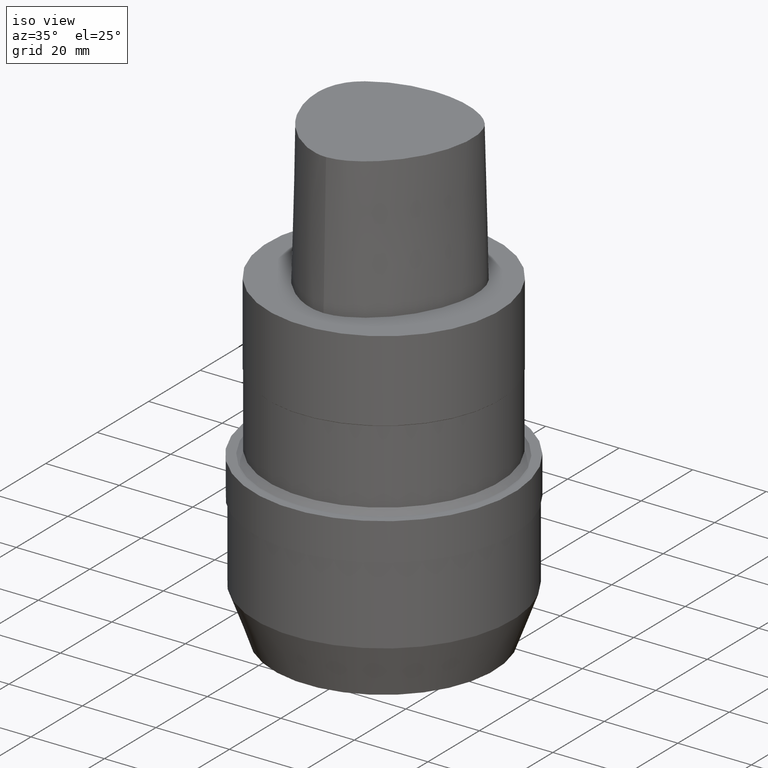
[diagram: clean part render]
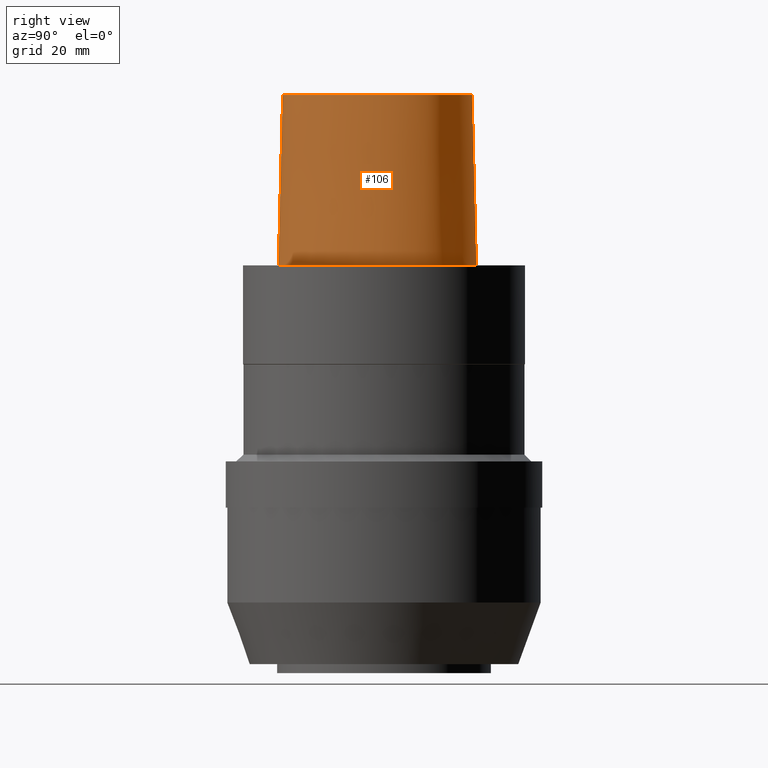
[diagram: tour spotlight — one face highlighted and labeled with its STEP entity id]
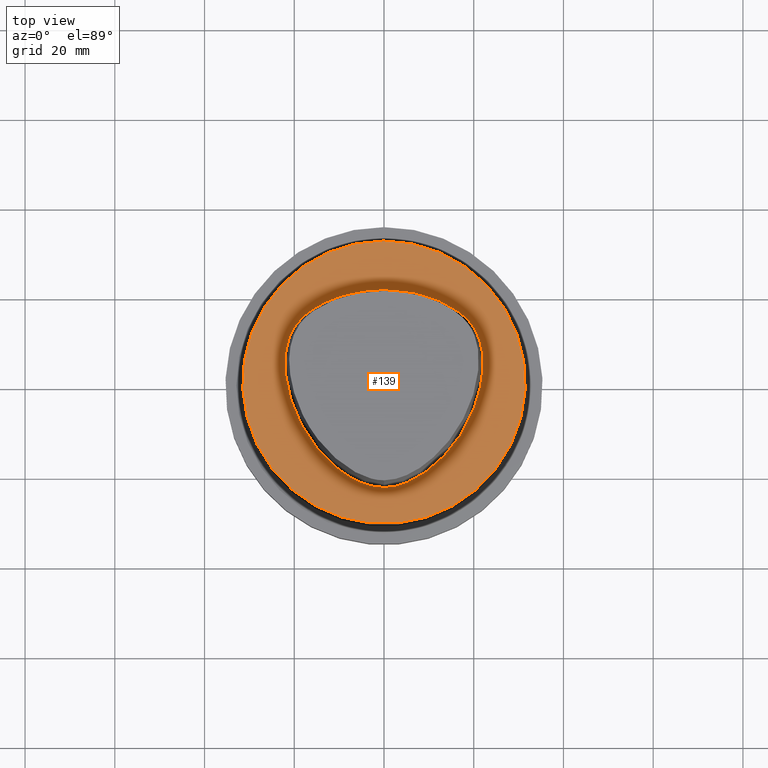
[diagram: tour spotlight — one face highlighted and labeled with its STEP entity id]
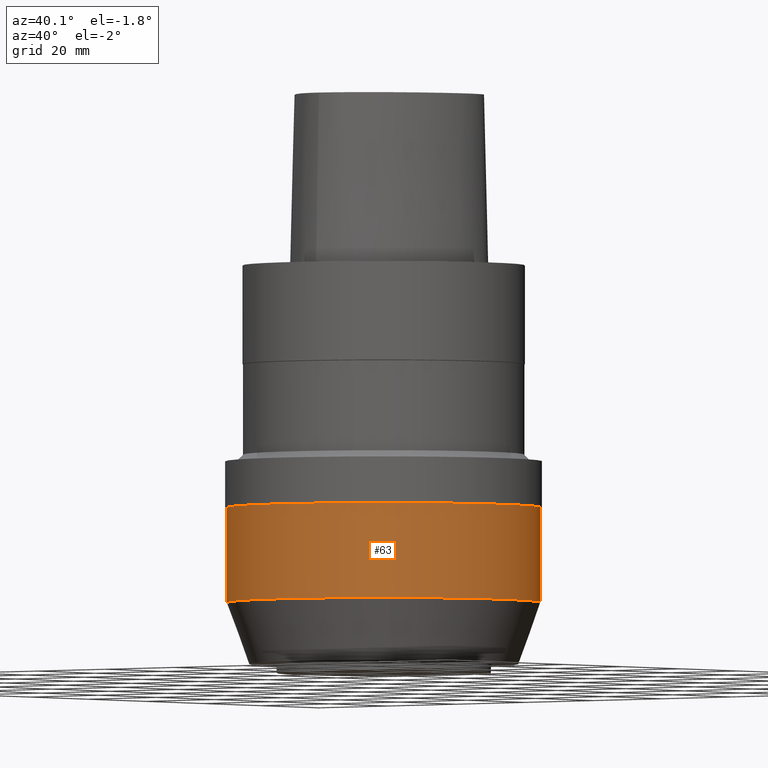
[diagram: tour spotlight — one face highlighted and labeled with its STEP entity id]
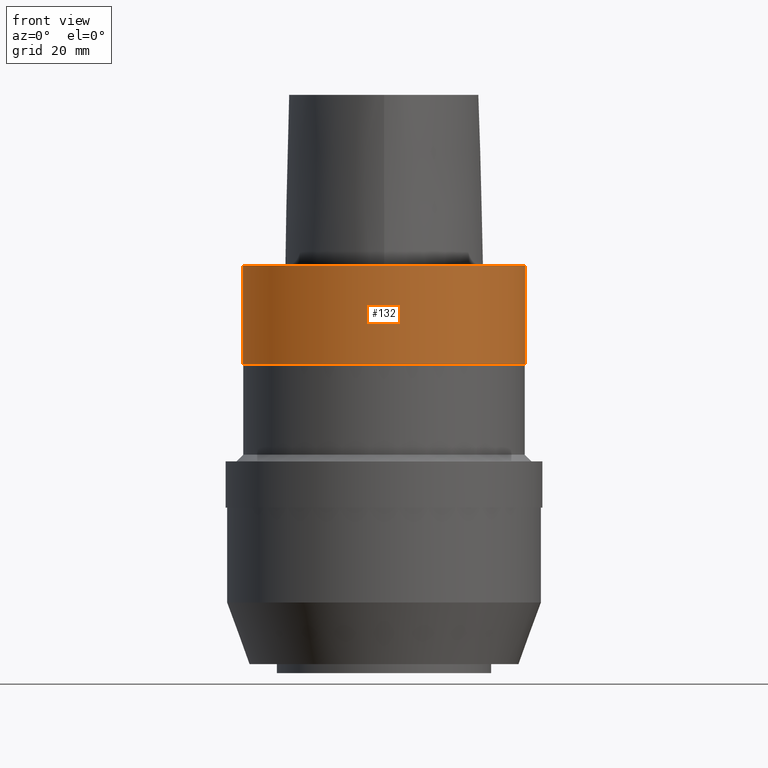
[diagram: tour spotlight — one face highlighted and labeled with its STEP entity id]
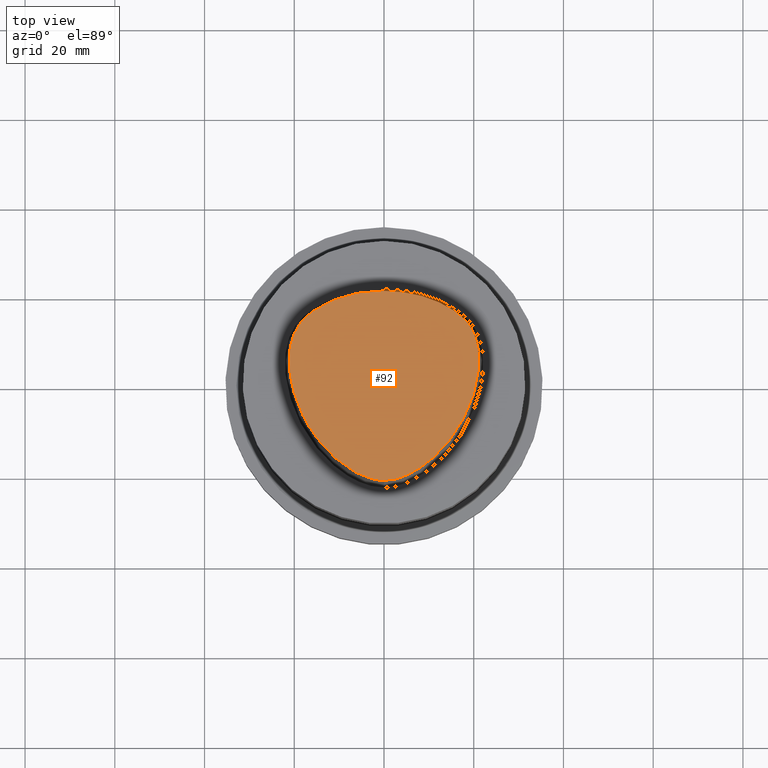
[diagram: tour spotlight — one face highlighted and labeled with its STEP entity id]
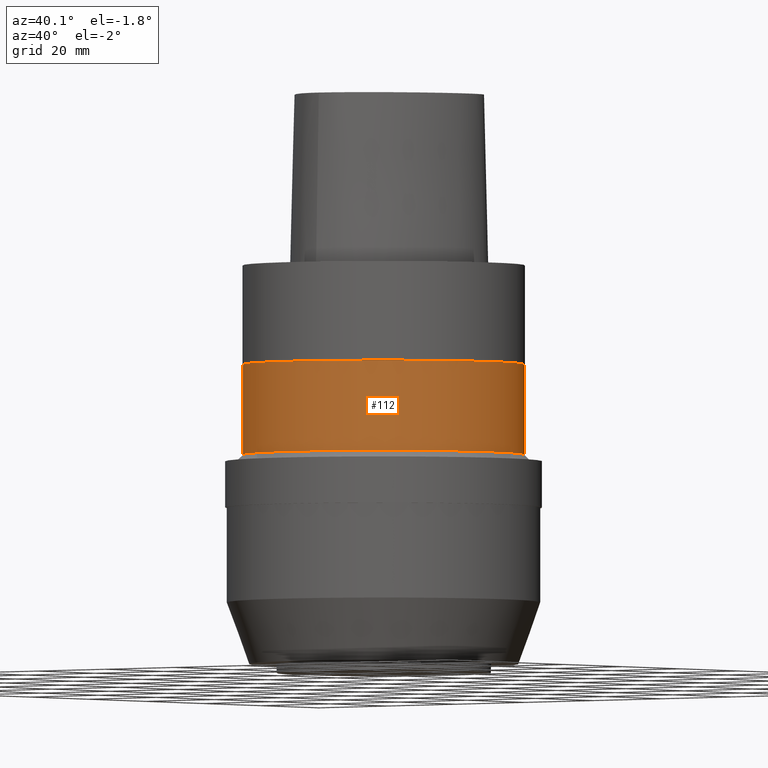
[diagram: tour spotlight — one face highlighted and labeled with its STEP entity id]
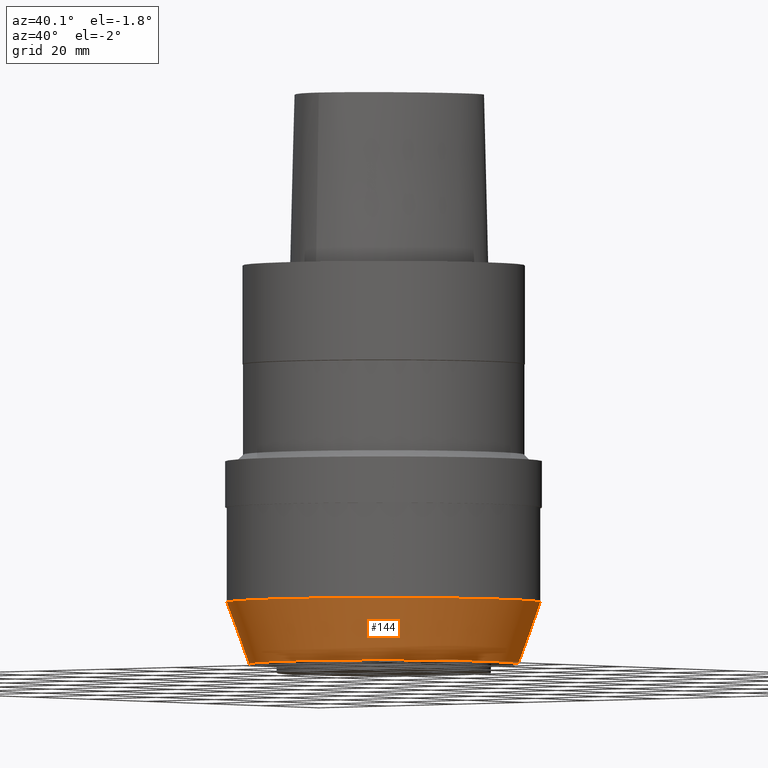
[diagram: tour spotlight — one face highlighted and labeled with its STEP entity id]
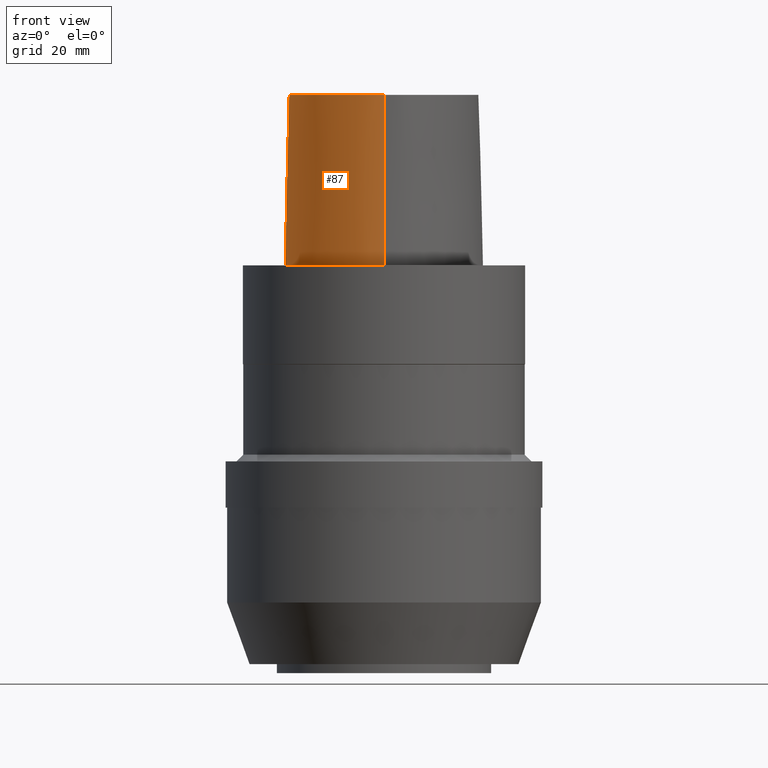
[diagram: tour spotlight — one face highlighted and labeled with its STEP entity id]
A machine part: a face-by-face anatomy tour. The part has 17 B-rep faces; the first image is the clean iso view, then the 8 largest visible faces are spotlighted one at a time (largest first), each with its STEP entity span.

Face 1 — right view, entity #106. In plain terms, the highlighted face is a freeform B-spline surface patch.
Definition (entity closure, byte-faithful):
#72=EDGE_CURVE('Unnamed[1]',#188,#189,#190,.T.);
#89=EDGE_CURVE('Unnamed[1]',#214,#206,#215,.T.);
#106=ADVANCED_FACE('Unnamed[1]',(#237),#238,.T.);
#117=EDGE_CURVE('Unnamed[1]',#189,#206,#254,.T.);
#136=EDGE_CURVE('Unnamed[1]',#214,#188,#283,.T.);
#188=VERTEX_POINT('',#339);
#189=VERTEX_POINT('',#340);
#190=LINE('',#341,#342);
#206=VERTEX_POINT('',#362);
#214=VERTEX_POINT('',#460);
#215=LINE('',#461,#462);
#237=FACE_OUTER_BOUND('',#507,.T.);
#238=B_SPLINE_SURFACE_WITH_KNOTS('',3,3,((#508,#509,#510,#511),(#512,#513,#514,#515),(#516,#517,#518,#519),(#520,#521,#522,#523),(#524,#525,#526,#527),(#528,#529,#530,#531),(#532,#533,#534,#535),(#536,#537,#538,#539),(#540,#541,#542,#543),(#544,#545,#546,#547),(#548,#549,#550,#551),(#552,#553,#554,#555),(#556,#557,#558,#559),(#560,#561,#562,#563),(#564,#565,#566,#567),(#568,#569,#570,#571),(#572,#573,#574,#575)),.UNSPECIFIED.,.F.,.F.,.F.,(4,1,1,1,1,1,1,1,1,1,1,1,1,1,4),(4,4),(-13.2302678617486,-12.816821991069,-12.4033761203893,-11.9899302497097,-11.57648437903,-11.1630385083504,-10.9563155730106,-10.7495926376707,-10.3361467669911,-9.92270089631145,-9.09580915495216,-8.26891741359287,-7.44202567223358,-7.02857980155394,-6.6151339308743),(-3.8,0.0),.UNSPECIFIED.);
#254=B_SPLINE_CURVE_WITH_KNOTS('',3,(#595,#596,#597,#598,#599,#600,#601,#602,#603,#604,#605,#606,#607,#608,#609,#610,#611),.UNSPECIFIED.,.F.,.F.,(4,1,1,1,1,1,1,1,1,1,1,1,1,1,4),(-13.2302678617486,-12.816821991069,-12.4033761203893,-11.9899302497097,-11.57648437903,-11.1630385083504,-10.9563155730106,-10.7495926376707,-10.3361467669911,-9.92270089631145,-9.09580915495216,-8.26891741359287,-7.44202567223358,-7.02857980155394,-6.6151339308743),.UNSPECIFIED.);
#283=B_SPLINE_CURVE_WITH_KNOTS('',3,(#648,#649,#650,#651,#652,#653,#654,#655,#656,#657,#658,#659,#660,#661,#662,#663),.UNSPECIFIED.,.F.,.F.,(4,1,1,1,1,1,1,1,1,1,1,1,1,4),(6.61513393087476,6.99917207152274,7.48193246986995,7.96289324787093,8.45540287038584,9.10291653679981,9.67129810936083,10.1618749681153,10.6358867802489,11.1080734988593,11.6043706019633,12.09451993853,12.6985979284494,13.2302678617486),.UNSPECIFIED.);
#339=CARTESIAN_POINT('',(-0.001218547003662,19.7276821925089,38.0));
#340=CARTESIAN_POINT('',(0.044682985379347,20.6765087343109,1.61778115328528E-031));
#341=CARTESIAN_POINT('',(-0.001218547003662,19.7276821925089,38.0));
#342=VECTOR('',#717,38.0118715503078);
#362=CARTESIAN_POINT('',(0.04359356758149,-23.4691235068931,7.78075697532443E-032));
#460=CARTESIAN_POINT('',(0.038736923393866,-22.5191997536361,38.0));
#461=CARTESIAN_POINT('',(0.038736923393866,-22.5191997536361,38.0));
#462=VECTOR('',#736,38.0118715498723);
#507=EDGE_LOOP('',(#757,#758,#759,#760));
#508=CARTESIAN_POINT('',(-0.001218367817519,19.7276822012873,38.0));
#509=CARTESIAN_POINT('',(0.014082083248157,20.0439577123075,25.3333333333066));
#510=CARTESIAN_POINT('',(0.029382534313671,20.3602332232908,12.6666666666934));
#511=CARTESIAN_POINT('',(0.044682985379347,20.6765087343109,1.61778115328528E-031));
#512=CARTESIAN_POINT('',(1.37788651195108,19.6609652834875,38.0));
#513=CARTESIAN_POINT('',(1.3931885827258,19.9772407169847,25.3333333333066));
#514=CARTESIAN_POINT('',(1.40849065356095,20.2935162254648,12.6666666666934));
#515=CARTESIAN_POINT('',(1.42379272427753,20.6097915814392,8.62816615085482E-032));
#516=CARTESIAN_POINT('',(4.135446440878,19.5347778787784,38.0));
#517=CARTESIAN_POINT('',(4.16466278851883,19.8511031866125,25.3333333333066));
#518=CARTESIAN_POINT('',(4.1938791526746,20.1674284644204,12.6666666666934));
#519=CARTESIAN_POINT('',(4.2230955003445,20.4837538303966,1.4791141972894E-031));
#520=CARTESIAN_POINT('',(8.213607363795,18.7706026638736,38.0));
#521=CARTESIAN_POINT('',(8.29980745008421,19.0767495109635,25.3333333333066));
#522=CARTESIAN_POINT('',(8.38600751285747,19.3828964329996,12.6666666666934));
#523=CARTESIAN_POINT('',(8.47220762821777,19.6890432607088,9.86076131526265E-032));
#524=CARTESIAN_POINT('',(12.1316338645671,17.3698624840857,38.0));
#525=CARTESIAN_POINT('',(12.2591308270381,17.6610739397708,25.3333333333066));
#526=CARTESIAN_POINT('',(12.3866278083543,17.9522853923553,12.6666666666934));
#527=CARTESIAN_POINT('',(12.5141247708253,18.2434968480404,0.0));
#528=CARTESIAN_POINT('',(15.7706546153679,15.3789501349612,38.0));
#529=CARTESIAN_POINT('',(15.9483905900895,15.6437731794811,25.3333333333066));
#530=CARTESIAN_POINT('',(16.1261265513272,15.9085961736944,12.6666666666934));
#531=CARTESIAN_POINT('',(16.3038624872874,16.1734192182143,1.97215226305253E-031));
#532=CARTESIAN_POINT('',(18.4265894256284,13.0570022172893,38.0));
#533=CARTESIAN_POINT('',(18.6659567517146,13.2725589420689,25.3333333333066));
#534=CARTESIAN_POINT('',(18.9053240921419,13.4881156488541,12.6666666666934));
#535=CARTESIAN_POINT('',(19.1446913988473,13.7036723639434,-1.97215226305253E-031));
#536=CARTESIAN_POINT('',(19.8679958653038,10.6923771981998,38.0));
#537=CARTESIAN_POINT('',(20.1559937048299,10.8287388264873,25.3333333333066));
#538=CARTESIAN_POINT('',(20.4439915656177,10.965100461641,12.6666666666934));
#539=CARTESIAN_POINT('',(20.7319894342149,11.1014620996188,0.0));
#540=CARTESIAN_POINT('',(20.8470867582337,8.07149548576131,38.0));
#541=CARTESIAN_POINT('',(21.1591164072431,8.14132775555392,25.3333333333066));
#542=CARTESIAN_POINT('',(21.4711459821861,8.21116003697855,12.6666666666934));
#543=CARTESIAN_POINT('',(21.7831756505763,8.28099229708081,-1.97215226305253E-031));
#544=CARTESIAN_POINT('',(21.2693244256982,4.61157245650171,38.0));
#545=CARTESIAN_POINT('',(21.5881576801997,4.6105997689982,25.3333333333066));
#546=CARTESIAN_POINT('',(21.9069908544037,4.60962709346857,12.6666666666934));
#547=CARTESIAN_POINT('',(22.2258240701438,4.60865440596506,0.0));
#548=CARTESIAN_POINT('',(20.8071610855575,-0.912828649855193,38.0));
#549=CARTESIAN_POINT('',(21.119311671178,-0.979640884839481,25.3333333333066));
#550=CARTESIAN_POINT('',(21.4314624224461,-1.04645306732201,12.6666666666934));
#551=CARTESIAN_POINT('',(21.7436130080666,-1.11326526354485,0.0));
#552=CARTESIAN_POINT('',(18.6841935581315,-7.54428794252837,38.0));
#553=CARTESIAN_POINT('',(18.9734452551861,-7.6809665891091,25.3333333333066));
#554=CARTESIAN_POINT('',(19.2626970689956,-7.81764505382656,12.6666666666934));
#555=CARTESIAN_POINT('',(19.5519487660502,-7.95432366164584,0.0));
#556=CARTESIAN_POINT('',(14.2175552814,-14.5971504342323,38.0));
#557=CARTESIAN_POINT('',(14.4641757465198,-14.8010930946929,25.3333333333066));
#558=CARTESIAN_POINT('',(14.710796247264,-15.0050359737917,12.6666666666934));
#559=CARTESIAN_POINT('',(14.9574167123838,-15.2089785567293,0.0));
#560=CARTESIAN_POINT('',(9.0844808732933,-19.3179298129689,38.0));
#561=CARTESIAN_POINT('',(9.27912152349017,-19.572866915557,25.3333333333066));
#562=CARTESIAN_POINT('',(9.47376218971294,-19.827804295621,12.6666666666934));
#563=CARTESIAN_POINT('',(9.66840283021945,-20.0827414369705,-9.86076131526265E-032));
#564=CARTESIAN_POINT('',(4.17112919194182,-21.8987568152736,38.0));
#565=CARTESIAN_POINT('',(4.28618163483998,-22.1973837173649,25.3333333333066));
#566=CARTESIAN_POINT('',(4.40123406239433,-22.4960105163661,12.6666666666934));
#567=CARTESIAN_POINT('',(4.51628650521788,-22.7946374572188,-9.86076131526265E-032));
#568=CARTESIAN_POINT('',(1.41533654381097,-22.5120888467812,38.0));
#569=CARTESIAN_POINT('',(1.46311520162011,-22.8284916374445,25.3333333333066));
#570=CARTESIAN_POINT('',(1.51089385942236,-23.144894486341,12.6666666666934));
#571=CARTESIAN_POINT('',(1.55867251738073,-23.4612972770043,-1.23259516440783E-032));
#572=CARTESIAN_POINT('',(0.038736923393866,-22.5191997536361,38.0));
#573=CARTESIAN_POINT('',(0.04035580478973,-22.8358410047159,25.3333333333066));
#574=CARTESIAN_POINT('',(0.041974686185626,-23.1524822558133,12.6666666666934));
#575=CARTESIAN_POINT('',(0.04359356758149,-23.4691235068931,7.78075697532443E-032));
#595=CARTESIAN_POINT('',(0.044682985379347,20.6765087343109,1.61778115328528E-031));
#596=CARTESIAN_POINT('',(1.42379272427753,20.6097915814392,8.62816615085482E-032));
#597=CARTESIAN_POINT('',(4.2230955003445,20.4837538303966,1.4791141972894E-031));
#598=CARTESIAN_POINT('',(8.47220762821777,19.6890432607088,9.86076131526265E-032));
#599=CARTESIAN_POINT('',(12.5141247708253,18.2434968480404,0.0));
#600=CARTESIAN_POINT('',(16.3038624872874,16.1734192182143,1.97215226305253E-031));
#601=CARTESIAN_POINT('',(19.1446913988473,13.7036723639434,-1.97215226305253E-031));
#602=CARTESIAN_POINT('',(20.7319894342149,11.1014620996188,0.0));
#603=CARTESIAN_POINT('',(21.7831756505763,8.28099229708081,-1.97215226305253E-031));
#604=CARTESIAN_POINT('',(22.2258240701438,4.60865440596506,0.0));
#605=CARTESIAN_POINT('',(21.7436130080666,-1.11326526354485,0.0));
#606=CARTESIAN_POINT('',(19.5519487660502,-7.95432366164584,0.0));
#607=CARTESIAN_POINT('',(14.9574167123838,-15.2089785567293,0.0));
#608=CARTESIAN_POINT('',(9.66840283021945,-20.0827414369705,-9.86076131526265E-032));
#609=CARTESIAN_POINT('',(4.51628650521788,-22.7946374572188,-9.86076131526265E-032));
#610=CARTESIAN_POINT('',(1.55867251738073,-23.4612972770043,-1.23259516440783E-032));
#611=CARTESIAN_POINT('',(0.04359356758149,-23.4691235068931,7.78075697532443E-032));
#648=CARTESIAN_POINT('',(0.038736923394311,-22.519199753636,38.0));
#649=CARTESIAN_POINT('',(1.31742058183662,-22.512662269405,38.0));
#650=CARTESIAN_POINT('',(4.2093773447498,-21.9116226439989,38.0));
#651=CARTESIAN_POINT('',(8.20895504542113,-19.7798683845067,38.0));
#652=CARTESIAN_POINT('',(11.9784633234593,-16.681663904162,38.0));
#653=CARTESIAN_POINT('',(15.5308821579362,-12.5807487594113,38.0));
#654=CARTESIAN_POINT('',(18.4566248438667,-7.64932246015528,38.0));
#655=CARTESIAN_POINT('',(20.4036090752029,-2.27012499825289,38.0));
#656=CARTESIAN_POINT('',(21.2357187429189,2.79891401173156,38.0));
#657=CARTESIAN_POINT('',(21.0811206267748,7.62543090736657,38.0));
#658=CARTESIAN_POINT('',(19.3383577336563,12.2772250726194,38.0));
#659=CARTESIAN_POINT('',(15.5796322014404,15.5799672120682,38.0));
#660=CARTESIAN_POINT('',(10.8392956074438,17.9834601687347,38.0));
#661=CARTESIAN_POINT('',(5.56068045850571,19.4586143858472,38.0));
#662=CARTESIAN_POINT('',(1.77223893711014,19.6418877095654,38.0));
#663=CARTESIAN_POINT('',(-0.001218367817519,19.7276822012873,38.0));
#717=DIRECTION('',(0.001207557810519,0.024961321374199,-0.999687688350411));
#736=DIRECTION('',(0.000127766510556,-0.024990186342461,-0.999687688361864));
#757=ORIENTED_EDGE('',*,*,#117,.F.);
#758=ORIENTED_EDGE('',*,*,#72,.F.);
#759=ORIENTED_EDGE('',*,*,#136,.F.);
#760=ORIENTED_EDGE('',*,*,#89,.T.);

Face 2 — top view, entity #139. In plain terms, the highlighted planar face has unit normal (-0, -0, 1).
Definition (entity closure, byte-faithful):
#70=EDGE_CURVE('Unnamed[1]',#185,#185,#186,.T.);
#84=EDGE_CURVE('Unnamed[1]',#206,#207,#208,.T.);
#117=EDGE_CURVE('Unnamed[1]',#189,#206,#254,.T.);
#139=ADVANCED_FACE('Unnamed[1]',(#286,#287),#288,.T.);
#152=EDGE_CURVE('Unnamed[1]',#207,#189,#307,.T.);
#185=VERTEX_POINT('',#335);
#186=CIRCLE('',#336,31.5);
#189=VERTEX_POINT('',#340);
#206=VERTEX_POINT('',#362);
#207=VERTEX_POINT('',#363);
#208=B_SPLINE_CURVE_WITH_KNOTS('',3,(#364,#365,#366,#367,#368,#369,#370,#371,#372,#373,#374,#375,#376,#377,#378,#379,#380,#381),.UNSPECIFIED.,.F.,.F.,(4,1,1,1,1,1,1,1,1,2,1,1,1,1,4),(-6.6151339308743,-6.20168806019465,-5.78824218951501,-5.37479631883537,-4.96135044815572,-4.13445870679644,-3.30756696543715,-2.89412109475751,-2.48067522407786,-2.06722935339822,-1.65378348271857,-1.24033761203893,-0.826891741359287,-0.413445870679644,0.0),.UNSPECIFIED.);
#254=B_SPLINE_CURVE_WITH_KNOTS('',3,(#595,#596,#597,#598,#599,#600,#601,#602,#603,#604,#605,#606,#607,#608,#609,#610,#611),.UNSPECIFIED.,.F.,.F.,(4,1,1,1,1,1,1,1,1,1,1,1,1,1,4),(-13.2302678617486,-12.816821991069,-12.4033761203893,-11.9899302497097,-11.57648437903,-11.1630385083504,-10.9563155730106,-10.7495926376707,-10.3361467669911,-9.92270089631145,-9.09580915495216,-8.26891741359287,-7.44202567223358,-7.02857980155394,-6.6151339308743),.UNSPECIFIED.);
#286=FACE_BOUND('',#667,.T.);
#287=FACE_OUTER_BOUND('',#668,.T.);
#288=PLANE('',#669);
#307=CIRCLE('',#693,0.949936168436318);
#335=CARTESIAN_POINT('',(-3.88267476788467E-031,31.5,3.85763741731416E-015));
#336=AXIS2_PLACEMENT_3D('',#714,#715,#716);
#340=CARTESIAN_POINT('',(0.044682985379347,20.6765087343109,1.61778115328528E-031));
#362=CARTESIAN_POINT('',(0.04359356758149,-23.4691235068931,7.78075697532443E-032));
#363=CARTESIAN_POINT('',(-0.045171994691285,20.6766009553285,1.6755590516169E-031));
#364=CARTESIAN_POINT('',(0.04359356758149,-23.4691235068931,7.78075697532443E-032));
#365=CARTESIAN_POINT('',(-1.4714994713963,-23.4767895315797,2.46519032881566E-032));
#366=CARTESIAN_POINT('',(-4.43923476371401,-22.821149804767,-4.93038065763132E-032));
#367=CARTESIAN_POINT('',(-8.35043230079961,-20.8000751253325,-9.86076131526265E-032));
#368=CARTESIAN_POINT('',(-11.744900222602,-18.1556117874078,-1.97215226305253E-031));
#369=CARTESIAN_POINT('',(-15.6989602501314,-14.0406306929147,-1.97215226305253E-031));
#370=CARTESIAN_POINT('',(-19.5352875070682,-8.00624990770787,1.97215226305253E-031));
#371=CARTESIAN_POINT('',(-21.7205626190491,-1.16081708945282,0.0));
#372=CARTESIAN_POINT('',(-22.2486616783342,4.54965558738736,0.0));
#373=CARTESIAN_POINT('',(-21.6646421256468,9.00229539124618,0.0));
#374=CARTESIAN_POINT('',(-20.3945635471922,11.7780544971003,0.0));
#375=CARTESIAN_POINT('',(-18.5925528034471,14.1980602922581,0.0));
#376=CARTESIAN_POINT('',(-16.3226584122258,16.1777748720707,0.0));
#377=CARTESIAN_POINT('',(-12.5076407874579,18.2524201541303,9.86076131526265E-032));
#378=CARTESIAN_POINT('',(-8.46776192107786,19.679114377952,9.86076131526265E-032));
#379=CARTESIAN_POINT('',(-4.23043497193604,20.487781597334,1.97215226305253E-031));
#380=CARTESIAN_POINT('',(-1.42313094248379,20.6127745766442,1.10933564796705E-031));
#381=CARTESIAN_POINT('',(-0.045171994691285,20.6766009553285,1.6755590516169E-031));
#595=CARTESIAN_POINT('',(0.044682985379347,20.6765087343109,1.61778115328528E-031));
#596=CARTESIAN_POINT('',(1.42379272427753,20.6097915814392,8.62816615085482E-032));
#597=CARTESIAN_POINT('',(4.2230955003445,20.4837538303966,1.4791141972894E-031));
#598=CARTESIAN_POINT('',(8.47220762821777,19.6890432607088,9.86076131526265E-032));
#599=CARTESIAN_POINT('',(12.5141247708253,18.2434968480404,0.0));
#600=CARTESIAN_POINT('',(16.3038624872874,16.1734192182143,1.97215226305253E-031));
#601=CARTESIAN_POINT('',(19.1446913988473,13.7036723639434,-1.97215226305253E-031));
#602=CARTESIAN_POINT('',(20.7319894342149,11.1014620996188,0.0));
#603=CARTESIAN_POINT('',(21.7831756505763,8.28099229708081,-1.97215226305253E-031));
#604=CARTESIAN_POINT('',(22.2258240701438,4.60865440596506,0.0));
#605=CARTESIAN_POINT('',(21.7436130080666,-1.11326526354485,0.0));
#606=CARTESIAN_POINT('',(19.5519487660502,-7.95432366164584,0.0));
#607=CARTESIAN_POINT('',(14.9574167123838,-15.2089785567293,0.0));
#608=CARTESIAN_POINT('',(9.66840283021945,-20.0827414369705,-9.86076131526265E-032));
#609=CARTESIAN_POINT('',(4.51628650521788,-22.7946374572188,-9.86076131526265E-032));
#610=CARTESIAN_POINT('',(1.55867251738073,-23.4612972770043,-1.23259516440783E-032));
#611=CARTESIAN_POINT('',(0.04359356758149,-23.4691235068931,7.78075697532443E-032));
#667=EDGE_LOOP('',(#811,#812,#813));
#668=EDGE_LOOP('',(#814));
#669=AXIS2_PLACEMENT_3D('',#815,#816,#817);
#693=AXIS2_PLACEMENT_3D('',#838,#839,#840);
#714=CARTESIAN_POINT('',(0.0,0.0,0.0));
#715=DIRECTION('',(6.12323399573677E-017,1.22464679914735E-016,-1.0));
#716=DIRECTION('',(-1.23259516440783E-032,1.0,1.22464679914735E-016));
#811=ORIENTED_EDGE('',*,*,#117,.T.);
#812=ORIENTED_EDGE('',*,*,#84,.T.);
#813=ORIENTED_EDGE('',*,*,#152,.T.);
#814=ORIENTED_EDGE('',*,*,#70,.F.);
#815=CARTESIAN_POINT('',(-1.94133738394233E-031,15.75,1.92881870865708E-015));
#816=DIRECTION('',(-6.12323399573677E-017,-1.22464679914735E-016,1.0));
#817=DIRECTION('',(1.23259516440783E-032,-1.0,-1.22464679914735E-016));
#838=CARTESIAN_POINT('',(-0.001218547003662,19.7276821925089,1.97178046083078E-015));
#839=DIRECTION('',(6.12323399573677E-017,1.22464679914735E-016,-1.0));
#840=DIRECTION('',(-0.046269895968506,0.998928974816059,1.19500303158668E-016));

Face 3 — auxiliary view, entity #63. In plain terms, the highlighted cylindrical surface (bore or boss wall) has radius 35 mm, axis along (0, 0, -1).
Definition (entity closure, byte-faithful):
#63=ADVANCED_FACE('Unnamed[1]',(#173,#174),#175,.T.);
#124=EDGE_CURVE('Unnamed[1]',#264,#264,#265,.T.);
#129=EDGE_CURVE('Unnamed[1]',#272,#272,#273,.T.);
#173=FACE_BOUND('',#320,.T.);
#174=FACE_BOUND('',#321,.T.);
#175=CYLINDRICAL_SURFACE('',#322,35.0);
#264=VERTEX_POINT('',#624);
#265=CIRCLE('',#625,35.0000000000001);
#272=VERTEX_POINT('',#634);
#273=CIRCLE('',#635,34.9999999999999);
#320=EDGE_LOOP('',(#700));
#321=EDGE_LOOP('',(#701));
#322=AXIS2_PLACEMENT_3D('',#702,#703,#704);
#624=CARTESIAN_POINT('',(3.30654635769783E-015,35.0000000000001,-53.9999999999996));
#625=AXIS2_PLACEMENT_3D('',#789,#790,#791);
#634=CARTESIAN_POINT('',(4.60238266534374E-015,34.9999999999999,-75.1626129027259));
#635=AXIS2_PLACEMENT_3D('',#798,#799,#800);
#700=ORIENTED_EDGE('',*,*,#129,.F.);
#701=ORIENTED_EDGE('',*,*,#124,.T.);
#702=CARTESIAN_POINT('',(3.95446451152078E-015,7.90892902304157E-015,-64.5813064513627));
#703=DIRECTION('',(6.12323399573677E-017,1.22464679914735E-016,-1.0));
#704=DIRECTION('',(-1.23259516440783E-032,1.0,1.22464679914735E-016));
#789=CARTESIAN_POINT('',(3.30654635769783E-015,6.61309271539566E-015,-53.9999999999996));
#790=DIRECTION('',(6.12323399573677E-017,1.22464679914735E-016,-1.0));
#791=DIRECTION('',(-1.23259516440783E-032,1.0,1.22464679914735E-016));
#798=CARTESIAN_POINT('',(4.60238266534374E-015,9.20476533068748E-015,-75.1626129027259));
#799=DIRECTION('',(6.12323399573677E-017,1.22464679914735E-016,-1.0));
#800=DIRECTION('',(-1.23259516440783E-032,1.0,1.22464679914735E-016));

Face 4 — front view, entity #132. In plain terms, the highlighted cylindrical surface (bore or boss wall) has radius 31.5 mm, axis along (0, 0, -1).
Definition (entity closure, byte-faithful):
#70=EDGE_CURVE('Unnamed[1]',#185,#185,#186,.T.);
#79=EDGE_CURVE('Unnamed[1]',#198,#198,#199,.T.);
#132=ADVANCED_FACE('Unnamed[1]',(#276,#277),#278,.T.);
#185=VERTEX_POINT('',#335);
#186=CIRCLE('',#336,31.5);
#198=VERTEX_POINT('',#352);
#199=CIRCLE('',#353,31.5);
#276=FACE_BOUND('',#639,.T.);
#277=FACE_BOUND('',#640,.T.);
#278=CYLINDRICAL_SURFACE('',#641,31.5);
#335=CARTESIAN_POINT('',(-3.88267476788467E-031,31.5,3.85763741731416E-015));
#336=AXIS2_PLACEMENT_3D('',#714,#715,#716);
#352=CARTESIAN_POINT('',(1.3471114790621E-015,31.5,-22.0000000000002));
#353=AXIS2_PLACEMENT_3D('',#722,#723,#724);
#639=EDGE_LOOP('',(#802));
#640=EDGE_LOOP('',(#803));
#641=AXIS2_PLACEMENT_3D('',#804,#805,#806);
#714=CARTESIAN_POINT('',(0.0,0.0,0.0));
#715=DIRECTION('',(6.12323399573677E-017,1.22464679914735E-016,-1.0));
#716=DIRECTION('',(-1.23259516440783E-032,1.0,1.22464679914735E-016));
#722=CARTESIAN_POINT('',(1.3471114790621E-015,2.69422295812421E-015,-22.0000000000002));
#723=DIRECTION('',(6.12323399573677E-017,1.22464679914735E-016,-1.0));
#724=DIRECTION('',(-1.23259516440783E-032,1.0,1.22464679914735E-016));
#802=ORIENTED_EDGE('',*,*,#79,.F.);
#803=ORIENTED_EDGE('',*,*,#70,.T.);
#804=CARTESIAN_POINT('',(6.73555739531051E-016,1.3471114790621E-015,-11.0000000000001));
#805=DIRECTION('',(6.12323399573677E-017,1.22464679914735E-016,-1.0));
#806=DIRECTION('',(-1.23259516440783E-032,1.0,1.22464679914735E-016));

Face 5 — top view, entity #92. In plain terms, the highlighted planar face has unit normal (-0, 0, 1).
Definition (entity closure, byte-faithful):
#92=ADVANCED_FACE('Unnamed[1]',(#218),#219,.T.);
#98=EDGE_CURVE('Unnamed[1]',#188,#214,#226,.T.);
#136=EDGE_CURVE('Unnamed[1]',#214,#188,#283,.T.);
#188=VERTEX_POINT('',#339);
#214=VERTEX_POINT('',#460);
#218=FACE_OUTER_BOUND('',#466,.T.);
#219=PLANE('',#467);
#226=B_SPLINE_CURVE_WITH_KNOTS('',3,(#478,#479,#480,#481,#482,#483,#484,#485,#486,#487,#488,#489,#490,#491,#492,#493),.UNSPECIFIED.,.F.,.F.,(4,1,1,1,1,1,1,1,1,1,1,1,1,4),(0.0,0.447924670568964,0.9388024242536,1.50591409090711,2.07314340012323,2.72424957442464,3.2253501842849,3.80982102049476,4.34867996267067,4.85900173381144,5.37972031856977,6.03459825488646,6.61113557741484,6.61513393087395),.UNSPECIFIED.);
#283=B_SPLINE_CURVE_WITH_KNOTS('',3,(#648,#649,#650,#651,#652,#653,#654,#655,#656,#657,#658,#659,#660,#661,#662,#663),.UNSPECIFIED.,.F.,.F.,(4,1,1,1,1,1,1,1,1,1,1,1,1,4),(6.61513393087476,6.99917207152274,7.48193246986995,7.96289324787093,8.45540287038584,9.10291653679981,9.67129810936083,10.1618749681153,10.6358867802489,11.1080734988593,11.6043706019633,12.09451993853,12.6985979284494,13.2302678617486),.UNSPECIFIED.);
#339=CARTESIAN_POINT('',(-0.001218547003662,19.7276821925089,38.0));
#460=CARTESIAN_POINT('',(0.038736923393866,-22.5191997536361,38.0));
#466=EDGE_LOOP('',(#738,#739));
#467=AXIS2_PLACEMENT_3D('',#740,#741,#742);
#478=CARTESIAN_POINT('',(-0.001218547003662,19.7276821925089,38.0));
#479=CARTESIAN_POINT('',(-1.49408492138443,19.6585333605309,38.0));
#480=CARTESIAN_POINT('',(-4.62297391420352,19.513604770166,38.0));
#481=CARTESIAN_POINT('',(-9.56160616752212,18.4291575730197,38.0));
#482=CARTESIAN_POINT('',(-14.5427684976927,16.2697452580488,38.0));
#483=CARTESIAN_POINT('',(-19.4315563551602,12.5302108980807,38.0));
#484=CARTESIAN_POINT('',(-21.306358833612,6.76352894547076,38.0));
#485=CARTESIAN_POINT('',(-21.0724946936277,0.957075236984038,38.0));
#486=CARTESIAN_POINT('',(-19.7876470880144,-4.34628503581652,38.0));
#487=CARTESIAN_POINT('',(-17.5396999600095,-9.33314444653089,38.0));
#488=CARTESIAN_POINT('',(-14.645447733857,-13.7185760345629,38.0));
#489=CARTESIAN_POINT('',(-10.7996726536643,-17.856257282137,38.0));
#490=CARTESIAN_POINT('',(-6.00479510196376,-21.2687382067675,38.0));
#491=CARTESIAN_POINT('',(-1.90747171908525,-22.5250621415864,38.0));
#492=CARTESIAN_POINT('',(0.025424107066464,-22.5192678176378,38.0));
#493=CARTESIAN_POINT('',(0.038736923394311,-22.519199753636,38.0));
#648=CARTESIAN_POINT('',(0.038736923394311,-22.519199753636,38.0));
#649=CARTESIAN_POINT('',(1.31742058183662,-22.512662269405,38.0));
#650=CARTESIAN_POINT('',(4.2093773447498,-21.9116226439989,38.0));
#651=CARTESIAN_POINT('',(8.20895504542113,-19.7798683845067,38.0));
#652=CARTESIAN_POINT('',(11.9784633234593,-16.681663904162,38.0));
#653=CARTESIAN_POINT('',(15.5308821579362,-12.5807487594113,38.0));
#654=CARTESIAN_POINT('',(18.4566248438667,-7.64932246015528,38.0));
#655=CARTESIAN_POINT('',(20.4036090752029,-2.27012499825289,38.0));
#656=CARTESIAN_POINT('',(21.2357187429189,2.79891401173156,38.0));
#657=CARTESIAN_POINT('',(21.0811206267748,7.62543090736657,38.0));
#658=CARTESIAN_POINT('',(19.3383577336563,12.2772250726194,38.0));
#659=CARTESIAN_POINT('',(15.5796322014404,15.5799672120682,38.0));
#660=CARTESIAN_POINT('',(10.8392956074438,17.9834601687347,38.0));
#661=CARTESIAN_POINT('',(5.56068045850571,19.4586143858472,38.0));
#662=CARTESIAN_POINT('',(1.77223893711014,19.6418877095654,38.0));
#663=CARTESIAN_POINT('',(-0.001218367817519,19.7276822012873,38.0));
#738=ORIENTED_EDGE('',*,*,#98,.T.);
#739=ORIENTED_EDGE('',*,*,#136,.T.);
#740=CARTESIAN_POINT('',(0.008647668684817,1.77491953635526,38.0));
#741=DIRECTION('',(-0.0,2.95577857036584E-049,1.0));
#742=DIRECTION('',(1.0,0.0,0.0));

Face 6 — auxiliary view, entity #112. In plain terms, the highlighted cylindrical surface (bore or boss wall) has radius 31.4 mm, axis along (0, 0, -1).
Definition (entity closure, byte-faithful):
#103=EDGE_CURVE('Unnamed[1]',#233,#233,#234,.T.);
#112=ADVANCED_FACE('Unnamed[1]',(#245,#246),#247,.T.);
#134=EDGE_CURVE('Unnamed[1]',#280,#280,#281,.T.);
#233=VERTEX_POINT('',#502);
#234=CIRCLE('',#503,31.3999999999876);
#245=FACE_BOUND('',#584,.T.);
#246=FACE_BOUND('',#585,.T.);
#247=CYLINDRICAL_SURFACE('',#586,31.4000000000041);
#280=VERTEX_POINT('',#644);
#281=CIRCLE('',#645,31.4000000000206);
#502=CARTESIAN_POINT('',(2.58400474620071E-015,31.3999999999876,-42.1999999999967));
#503=AXIS2_PLACEMENT_3D('',#753,#754,#755);
#584=EDGE_LOOP('',(#769));
#585=EDGE_LOOP('',(#770));
#586=AXIS2_PLACEMENT_3D('',#771,#772,#773);
#644=CARTESIAN_POINT('',(1.35323471305658E-015,31.4000000000206,-22.0999999999797));
#645=AXIS2_PLACEMENT_3D('',#807,#808,#809);
#753=CARTESIAN_POINT('',(2.58400474620071E-015,5.16800949240143E-015,-42.1999999999967));
#754=DIRECTION('',(6.12323399573677E-017,1.22464679914735E-016,-1.0));
#755=DIRECTION('',(-1.23259516440783E-032,1.0,1.22464679914735E-016));
#769=ORIENTED_EDGE('',*,*,#103,.F.);
#770=ORIENTED_EDGE('',*,*,#134,.T.);
#771=CARTESIAN_POINT('',(1.96861972962865E-015,3.93723945925729E-015,-32.1499999999882));
#772=DIRECTION('',(6.12323399573677E-017,1.22464679914735E-016,-1.0));
#773=DIRECTION('',(-1.23259516440783E-032,1.0,1.22464679914735E-016));
#807=CARTESIAN_POINT('',(1.35323471305658E-015,2.70646942611316E-015,-22.0999999999797));
#808=DIRECTION('',(6.12323399573677E-017,1.22464679914735E-016,-1.0));
#809=DIRECTION('',(-1.23259516440783E-032,1.0,1.22464679914735E-016));

Face 7 — auxiliary view, entity #144. In plain terms, the highlighted conical surface has half-angle 20 deg.
Definition (entity closure, byte-faithful):
#129=EDGE_CURVE('Unnamed[1]',#272,#272,#273,.T.);
#141=EDGE_CURVE('Unnamed[1]',#290,#290,#291,.T.);
#144=ADVANCED_FACE('Unnamed[1]',(#294,#295),#296,.T.);
#272=VERTEX_POINT('',#634);
#273=CIRCLE('',#635,34.9999999999999);
#290=VERTEX_POINT('',#672);
#291=CIRCLE('',#673,30.0);
#294=FACE_BOUND('',#677,.T.);
#295=FACE_BOUND('',#678,.T.);
#296=CONICAL_SURFACE('',#679,32.5,0.349065850398844);
#634=CARTESIAN_POINT('',(4.60238266534374E-015,34.9999999999999,-75.1626129027259));
#635=AXIS2_PLACEMENT_3D('',#798,#799,#800);
#672=CARTESIAN_POINT('',(5.44355502220996E-015,30.0,-88.8999999999997));
#673=AXIS2_PLACEMENT_3D('',#818,#819,#820);
#677=EDGE_LOOP('',(#822));
#678=EDGE_LOOP('',(#823));
#679=AXIS2_PLACEMENT_3D('',#824,#825,#826);
#798=CARTESIAN_POINT('',(4.60238266534374E-015,9.20476533068748E-015,-75.1626129027259));
#799=DIRECTION('',(6.12323399573677E-017,1.22464679914735E-016,-1.0));
#800=DIRECTION('',(-1.23259516440783E-032,1.0,1.22464679914735E-016));
#818=CARTESIAN_POINT('',(5.44355502220996E-015,1.08871100444199E-014,-88.8999999999997));
#819=DIRECTION('',(6.12323399573677E-017,1.22464679914735E-016,-1.0));
#820=DIRECTION('',(-1.23259516440783E-032,1.0,1.22464679914735E-016));
#822=ORIENTED_EDGE('',*,*,#141,.F.);
#823=ORIENTED_EDGE('',*,*,#129,.T.);
#824=CARTESIAN_POINT('',(5.02296884377685E-015,1.00459376875537E-014,-82.0313064513628));
#825=DIRECTION('',(-6.12323399573677E-017,-1.22464679914735E-016,1.0));
#826=DIRECTION('',(-1.23259516440783E-032,1.0,1.22464679914735E-016));

Face 8 — front view, entity #87. In plain terms, the highlighted face is a freeform B-spline surface patch.
Definition (entity closure, byte-faithful):
#84=EDGE_CURVE('Unnamed[1]',#206,#207,#208,.T.);
#87=ADVANCED_FACE('Unnamed[1]',(#211),#212,.T.);
#89=EDGE_CURVE('Unnamed[1]',#214,#206,#215,.T.);
#94=EDGE_CURVE('Unnamed[1]',#188,#207,#221,.T.);
#98=EDGE_CURVE('Unnamed[1]',#188,#214,#226,.T.);
#188=VERTEX_POINT('',#339);
#206=VERTEX_POINT('',#362);
#207=VERTEX_POINT('',#363);
#208=B_SPLINE_CURVE_WITH_KNOTS('',3,(#364,#365,#366,#367,#368,#369,#370,#371,#372,#373,#374,#375,#376,#377,#378,#379,#380,#381),.UNSPECIFIED.,.F.,.F.,(4,1,1,1,1,1,1,1,1,2,1,1,1,1,4),(-6.6151339308743,-6.20168806019465,-5.78824218951501,-5.37479631883537,-4.96135044815572,-4.13445870679644,-3.30756696543715,-2.89412109475751,-2.48067522407786,-2.06722935339822,-1.65378348271857,-1.24033761203893,-0.826891741359287,-0.413445870679644,0.0),.UNSPECIFIED.);
#211=FACE_OUTER_BOUND('',#385,.T.);
#212=B_SPLINE_SURFACE_WITH_KNOTS('',3,3,((#386,#387,#388,#389),(#390,#391,#392,#393),(#394,#395,#396,#397),(#398,#399,#400,#401),(#402,#403,#404,#405),(#406,#407,#408,#409),(#410,#411,#412,#413),(#414,#415,#416,#417),(#418,#419,#420,#421),(#422,#423,#424,#425),(#426,#427,#428,#429),(#430,#431,#432,#433),(#434,#435,#436,#437),(#438,#439,#440,#441),(#442,#443,#444,#445),(#446,#447,#448,#449),(#450,#451,#452,#453),(#454,#455,#456,#457)),.UNSPECIFIED.,.F.,.F.,.F.,(4,1,1,1,1,1,1,1,1,2,1,1,1,1,4),(4,4),(-6.6151339308743,-6.20168806019465,-5.78824218951501,-5.37479631883537,-4.96135044815572,-4.13445870679644,-3.30756696543715,-2.89412109475751,-2.48067522407786,-2.06722935339822,-1.65378348271857,-1.24033761203893,-0.826891741359287,-0.413445870679644,0.0),(-3.8,0.0),.UNSPECIFIED.);
#214=VERTEX_POINT('',#460);
#215=LINE('',#461,#462);
#221=LINE('',#470,#471);
#226=B_SPLINE_CURVE_WITH_KNOTS('',3,(#478,#479,#480,#481,#482,#483,#484,#485,#486,#487,#488,#489,#490,#491,#492,#493),.UNSPECIFIED.,.F.,.F.,(4,1,1,1,1,1,1,1,1,1,1,1,1,4),(0.0,0.447924670568964,0.9388024242536,1.50591409090711,2.07314340012323,2.72424957442464,3.2253501842849,3.80982102049476,4.34867996267067,4.85900173381144,5.37972031856977,6.03459825488646,6.61113557741484,6.61513393087395),.UNSPECIFIED.);
#339=CARTESIAN_POINT('',(-0.001218547003662,19.7276821925089,38.0));
#362=CARTESIAN_POINT('',(0.04359356758149,-23.4691235068931,7.78075697532443E-032));
#363=CARTESIAN_POINT('',(-0.045171994691285,20.6766009553285,1.6755590516169E-031));
#364=CARTESIAN_POINT('',(0.04359356758149,-23.4691235068931,7.78075697532443E-032));
#365=CARTESIAN_POINT('',(-1.4714994713963,-23.4767895315797,2.46519032881566E-032));
#366=CARTESIAN_POINT('',(-4.43923476371401,-22.821149804767,-4.93038065763132E-032));
#367=CARTESIAN_POINT('',(-8.35043230079961,-20.8000751253325,-9.86076131526265E-032));
#368=CARTESIAN_POINT('',(-11.744900222602,-18.1556117874078,-1.97215226305253E-031));
#369=CARTESIAN_POINT('',(-15.6989602501314,-14.0406306929147,-1.97215226305253E-031));
#370=CARTESIAN_POINT('',(-19.5352875070682,-8.00624990770787,1.97215226305253E-031));
#371=CARTESIAN_POINT('',(-21.7205626190491,-1.16081708945282,0.0));
#372=CARTESIAN_POINT('',(-22.2486616783342,4.54965558738736,0.0));
#373=CARTESIAN_POINT('',(-21.6646421256468,9.00229539124618,0.0));
#374=CARTESIAN_POINT('',(-20.3945635471922,11.7780544971003,0.0));
#375=CARTESIAN_POINT('',(-18.5925528034471,14.1980602922581,0.0));
#376=CARTESIAN_POINT('',(-16.3226584122258,16.1777748720707,0.0));
#377=CARTESIAN_POINT('',(-12.5076407874579,18.2524201541303,9.86076131526265E-032));
#378=CARTESIAN_POINT('',(-8.46776192107786,19.679114377952,9.86076131526265E-032));
#379=CARTESIAN_POINT('',(-4.23043497193604,20.487781597334,1.97215226305253E-031));
#380=CARTESIAN_POINT('',(-1.42313094248379,20.6127745766442,1.10933564796705E-031));
#381=CARTESIAN_POINT('',(-0.045171994691285,20.6766009553285,1.6755590516169E-031));
#385=EDGE_LOOP('',(#732,#733,#734,#735));
#386=CARTESIAN_POINT('',(0.038736923393866,-22.5191997536361,38.0));
#387=CARTESIAN_POINT('',(0.04035580478973,-22.8358410047159,25.3333333333066));
#388=CARTESIAN_POINT('',(0.041974686185626,-23.1524822558133,12.6666666666934));
#389=CARTESIAN_POINT('',(0.04359356758149,-23.4691235068931,7.78075697532443E-032));
#390=CARTESIAN_POINT('',(-1.33786123484754,-22.5261650259856,38.0));
#391=CARTESIAN_POINT('',(-1.38240731367927,-22.8430399310626,25.3333333333066));
#392=CARTESIAN_POINT('',(-1.42695339249092,-23.1599147815484,12.6666666666934));
#393=CARTESIAN_POINT('',(-1.4714994713963,-23.4767895315797,2.46519032881566E-032));
#394=CARTESIAN_POINT('',(-4.08909358431842,-21.9268839879558,38.0));
#395=CARTESIAN_POINT('',(-4.20580731135515,-22.2249725500078,25.3333333333066));
#396=CARTESIAN_POINT('',(-4.32252104640446,-22.5230611651922,12.6666666666934));
#397=CARTESIAN_POINT('',(-4.43923476371401,-22.821149804767,-4.93038065763132E-032));
#398=CARTESIAN_POINT('',(-7.8333083619947,-19.9973514861616,38.0));
#399=CARTESIAN_POINT('',(-8.00568301809614,-20.2649260859405,25.3333333333066));
#400=CARTESIAN_POINT('',(-8.1780576640789,-20.532500564315,12.6666666666934));
#401=CARTESIAN_POINT('',(-8.35043230079961,-20.8000751253325,-9.86076131526265E-032));
#402=CARTESIAN_POINT('',(-11.1035071147626,-17.450554957873,38.0));
#403=CARTESIAN_POINT('',(-11.3173048160562,-17.6855739222454,25.3333333333066));
#404=CARTESIAN_POINT('',(-11.5311025116181,-17.9205928617968,12.6666666666934));
#405=CARTESIAN_POINT('',(-11.744900222602,-18.1556117874078,-1.97215226305253E-031));
#406=CARTESIAN_POINT('',(-14.9379535189057,-13.461132049697,38.0));
#407=CARTESIAN_POINT('',(-15.191622410671,-13.6542981711372,25.3333333333066));
#408=CARTESIAN_POINT('',(-15.4452913389853,-13.8474645327131,12.6666666666934));
#409=CARTESIAN_POINT('',(-15.6989602501314,-14.0406306929147,-1.97215226305253E-031));
#410=CARTESIAN_POINT('',(-18.6681263017223,-7.59391757463204,38.0));
#411=CARTESIAN_POINT('',(-18.9571800800711,-7.73136168081928,25.3333333333066));
#412=CARTESIAN_POINT('',(-19.2462337287194,-7.86880572399774,12.6666666666934));
#413=CARTESIAN_POINT('',(-19.5352875070682,-8.00624990770787,1.97215226305253E-031));
#414=CARTESIAN_POINT('',(-20.7857899858339,-0.952862819790525,38.0));
#415=CARTESIAN_POINT('',(-21.0973808305434,-1.02218087467418,25.3333333333066));
#416=CARTESIAN_POINT('',(-21.408971677436,-1.09149899580772,12.6666666666934));
#417=CARTESIAN_POINT('',(-21.7205626190491,-1.16081708945282,0.0));
#418=CARTESIAN_POINT('',(-21.2911760556836,4.5469215763113,38.0));
#419=CARTESIAN_POINT('',(-21.610337904926,4.54783292082248,25.3333333333066));
#420=CARTESIAN_POINT('',(-21.9294998290918,4.54874426225691,12.6666666666934));
#421=CARTESIAN_POINT('',(-22.2486616783342,4.54965558738736,0.0));
#422=CARTESIAN_POINT('',(-20.7345309521958,8.74909381391006,38.0));
#423=CARTESIAN_POINT('',(-21.0445680426217,8.83349432450556,25.3333333333066));
#424=CARTESIAN_POINT('',(-21.3546050933631,8.91789488065068,12.6666666666934));
#425=CARTESIAN_POINT('',(-21.6646421256468,9.00229539124618,0.0));
#426=CARTESIAN_POINT('',(-19.5531512296439,11.3174844040833,38.0));
#427=CARTESIAN_POINT('',(-19.8336219699984,11.4710077674213,25.3333333333066));
#428=CARTESIAN_POINT('',(-20.1140927680763,11.6245311337623,12.6666666666934));
#429=CARTESIAN_POINT('',(-20.3945635471922,11.7780544971003,0.0));
#430=CARTESIAN_POINT('',(-17.9100913688793,13.524027510437,38.0));
#431=CARTESIAN_POINT('',(-18.1375785458768,13.7487051053655,25.3333333333066));
#432=CARTESIAN_POINT('',(-18.365065665211,13.9733826973296,12.6666666666934));
#433=CARTESIAN_POINT('',(-18.5925528034471,14.1980602922581,0.0));
#434=CARTESIAN_POINT('',(-15.7996349656398,15.3762170634413,38.0));
#435=CARTESIAN_POINT('',(-15.9739761051783,15.6434029846179,25.3333333333066));
#436=CARTESIAN_POINT('',(-16.1483172726872,15.9105889315134,12.6666666666934));
#437=CARTESIAN_POINT('',(-16.3226584122258,16.1777748720707,0.0));
#438=CARTESIAN_POINT('',(-12.1175640002064,17.3825162484012,38.0));
#439=CARTESIAN_POINT('',(-12.2475895903055,17.6724842099619,25.3333333333066));
#440=CARTESIAN_POINT('',(-12.3776152070492,17.9624521925696,12.6666666666934));
#441=CARTESIAN_POINT('',(-12.5076407874579,18.2524201541303,9.86076131526265E-032));
#442=CARTESIAN_POINT('',(-8.21761151654222,18.7588585989994,38.0));
#443=CARTESIAN_POINT('',(-8.30099497910627,19.0656105427881,25.3333333333066));
#444=CARTESIAN_POINT('',(-8.38437843913309,19.3723624535439,12.6666666666934));
#445=CARTESIAN_POINT('',(-8.46776192107786,19.679114377952,9.86076131526265E-032));
#446=CARTESIAN_POINT('',(-4.13466093881225,19.5396850837055,38.0));
#447=CARTESIAN_POINT('',(-4.16658562115465,19.8557172636973,25.3333333333066));
#448=CARTESIAN_POINT('',(-4.19851029939059,20.1717494367229,12.6666666666934));
#449=CARTESIAN_POINT('',(-4.23043497193604,20.487781597334,1.97215226305253E-031));
#450=CARTESIAN_POINT('',(-1.37917220403684,19.6638560588908,38.0));
#451=CARTESIAN_POINT('',(-1.39382511685176,19.98016223565,25.3333333333066));
#452=CARTESIAN_POINT('',(-1.40847802945569,20.296468399885,12.6666666666934));
#453=CARTESIAN_POINT('',(-1.42313094248379,20.6127745766442,1.10933564796705E-031));
#454=CARTESIAN_POINT('',(-0.001218547003662,19.7276821925089,38.0));
#455=CARTESIAN_POINT('',(-0.015869696232855,20.043988446791,25.3333333333066));
#456=CARTESIAN_POINT('',(-0.030520845462092,20.3602947010464,12.6666666666934));
#457=CARTESIAN_POINT('',(-0.045171994691285,20.6766009553285,1.6755590516169E-031));
#460=CARTESIAN_POINT('',(0.038736923393866,-22.5191997536361,38.0));
#461=CARTESIAN_POINT('',(0.038736923393866,-22.5191997536361,38.0));
#462=VECTOR('',#736,38.0118715498723);
#470=CARTESIAN_POINT('',(-0.001218547003662,19.7276821925089,38.0));
#471=VECTOR('',#743,38.0118715498723);
#478=CARTESIAN_POINT('',(-0.001218547003662,19.7276821925089,38.0));
#479=CARTESIAN_POINT('',(-1.49408492138443,19.6585333605309,38.0));
#480=CARTESIAN_POINT('',(-4.62297391420352,19.513604770166,38.0));
#481=CARTESIAN_POINT('',(-9.56160616752212,18.4291575730197,38.0));
#482=CARTESIAN_POINT('',(-14.5427684976927,16.2697452580488,38.0));
#483=CARTESIAN_POINT('',(-19.4315563551602,12.5302108980807,38.0));
#484=CARTESIAN_POINT('',(-21.306358833612,6.76352894547076,38.0));
#485=CARTESIAN_POINT('',(-21.0724946936277,0.957075236984038,38.0));
#486=CARTESIAN_POINT('',(-19.7876470880144,-4.34628503581652,38.0));
#487=CARTESIAN_POINT('',(-17.5396999600095,-9.33314444653089,38.0));
#488=CARTESIAN_POINT('',(-14.645447733857,-13.7185760345629,38.0));
#489=CARTESIAN_POINT('',(-10.7996726536643,-17.856257282137,38.0));
#490=CARTESIAN_POINT('',(-6.00479510196376,-21.2687382067675,38.0));
#491=CARTESIAN_POINT('',(-1.90747171908525,-22.5250621415864,38.0));
#492=CARTESIAN_POINT('',(0.025424107066464,-22.5192678176378,38.0));
#493=CARTESIAN_POINT('',(0.038736923394311,-22.519199753636,38.0));
#732=ORIENTED_EDGE('',*,*,#84,.F.);
#733=ORIENTED_EDGE('',*,*,#89,.F.);
#734=ORIENTED_EDGE('',*,*,#98,.F.);
#735=ORIENTED_EDGE('',*,*,#94,.T.);
#736=DIRECTION('',(0.000127766510556,-0.024990186342461,-0.999687688361864));
#743=DIRECTION('',(-0.001156308434589,0.02496374748543,-0.999687688361864));